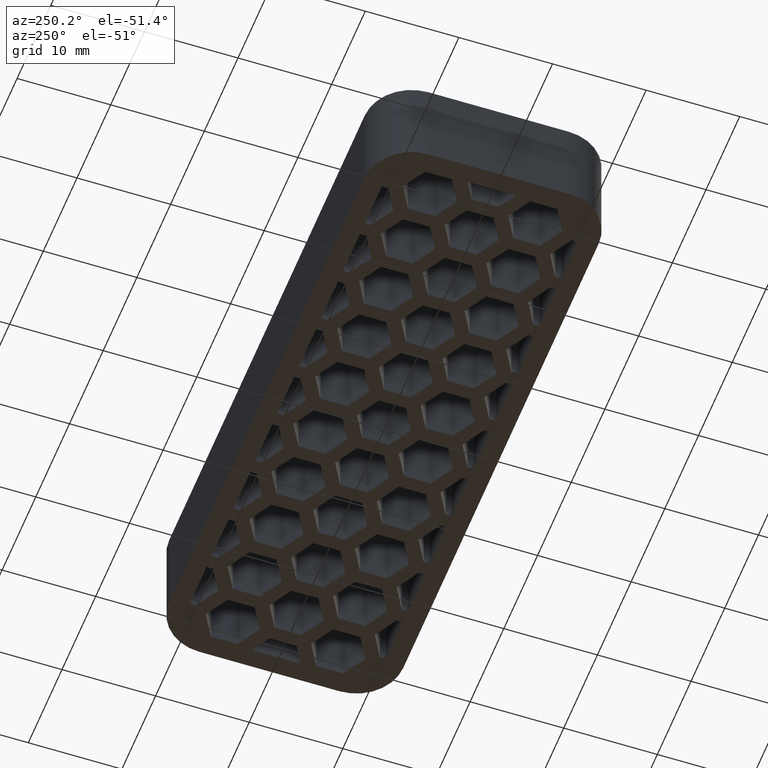
[diagram: clean part render]
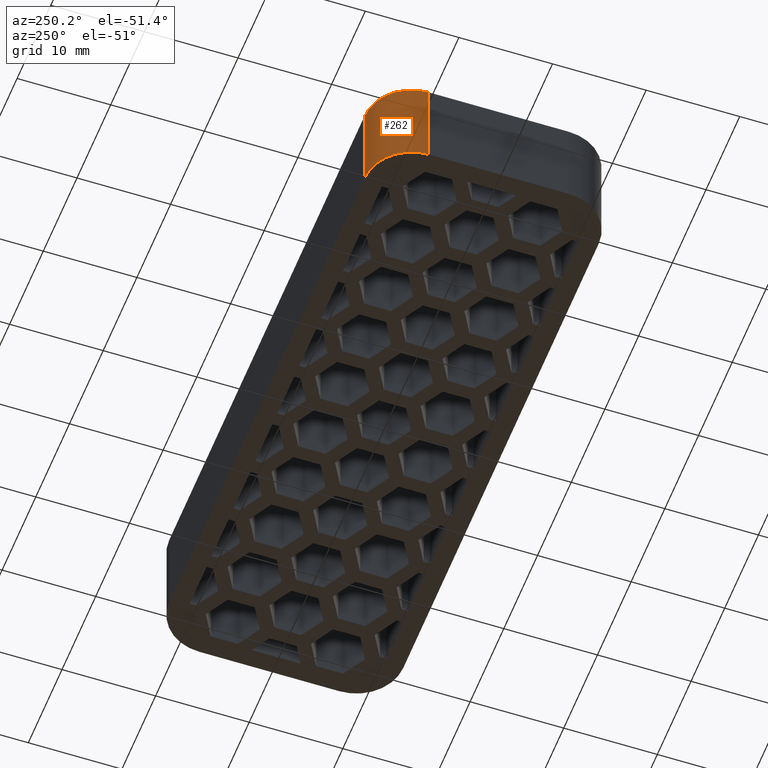
[diagram: same view with one face highlighted and labeled with its STEP entity id]
A machine part, auxiliary view. The second image highlights one B-rep face of the part: STEP entity #262.
In plain terms, the highlighted cylindrical surface (partial cylindrical patch) has radius 5 mm, axis along (-0, 0, 1).
Its self-contained STEP definition (entity closure, byte-faithful):
#262 = ADVANCED_FACE( '', ( #876 ), #877, .T. );
#876 = FACE_OUTER_BOUND( '', #1670, .T. );
#877 = CYLINDRICAL_SURFACE( '', #1671, 5.00000000000000 );
#1670 = EDGE_LOOP( '', ( #3725, #3726, #3727, #3728 ) );
#1671 = AXIS2_PLACEMENT_3D( '', #3729, #3730, #3731 );
#3725 = ORIENTED_EDGE( '', *, *, #5318, .F. );
#3726 = ORIENTED_EDGE( '', *, *, #5800, .F. );
#3727 = ORIENTED_EDGE( '', *, *, #5007, .T. );
#3728 = ORIENTED_EDGE( '', *, *, #5362, .T. );
#3729 = CARTESIAN_POINT( '', ( -29.0000000000000, 7.50000000000001, 95.1170716855138 ) );
#3730 = DIRECTION( '', ( -1.60751816480226E-016, 1.81794180051289E-016, 1.00000000000000 ) );
#3731 = DIRECTION( '', ( -1.00000000000000, 4.62592926927148E-016, -1.60751816480226E-016 ) );
#5007 = EDGE_CURVE( '', #5951, #5949, #5952, .T. );
#5318 = EDGE_CURVE( '', #6564, #6566, #6567, .T. );
#5362 = EDGE_CURVE( '', #5949, #6566, #6636, .T. );
#5800 = EDGE_CURVE( '', #5951, #6564, #7348, .T. );
#5949 = VERTEX_POINT( '', #7509 );
#5951 = VERTEX_POINT( '', #7512 );
#5952 = CIRCLE( '', #7513, 5.00000000000000 );
#6564 = VERTEX_POINT( '', #8426 );
#6566 = VERTEX_POINT( '', #8429 );
#6567 = CIRCLE( '', #8430, 5.00000000000000 );
#6636 = LINE( '', #8540, #8541 );
#7348 = LINE( '', #9688, #9689 );
#7509 = CARTESIAN_POINT( '', ( -29.0000000000000, 12.5000000000000, 10.0000000000000 ) );
#7512 = CARTESIAN_POINT( '', ( -34.0000000000000, 7.50000000000001, 10.0000000000000 ) );
#7513 = AXIS2_PLACEMENT_3D( '', #9947, #9948, #9949 );
#8426 = CARTESIAN_POINT( '', ( -34.0000000000000, 7.50000000000001, 1.34185604251311E-014 ) );
#8429 = CARTESIAN_POINT( '', ( -29.0000000000000, 12.5000000000000, 1.31124088366755E-014 ) );
#8430 = AXIS2_PLACEMENT_3D( '', #10276, #10277, #10278 );
#8540 = CARTESIAN_POINT( '', ( -29.0000000000000, 12.5000000000000, 95.1170716855138 ) );
#8541 = VECTOR( '', #10326, 1000.00000000000 );
#9688 = CARTESIAN_POINT( '', ( -34.0000000000000, 7.50000000000001, 95.1170716855138 ) );
#9689 = VECTOR( '', #10768, 1000.00000000000 );
#9947 = CARTESIAN_POINT( '', ( -29.0000000000000, 7.50000000000000, 10.0000000000000 ) );
#9948 = DIRECTION( '', ( 0.000000000000000, -6.12303176911189E-017, -1.00000000000000 ) );
#9949 = DIRECTION( '', ( 0.000000000000000, 1.00000000000000, -6.12303176911189E-017 ) );
#10276 = CARTESIAN_POINT( '', ( -29.0000000000000, 7.50000000000000, 1.34185604251311E-014 ) );
#10277 = DIRECTION( '', ( 0.000000000000000, -6.12303176911189E-017, -1.00000000000000 ) );
#10278 = DIRECTION( '', ( 0.000000000000000, 1.00000000000000, -6.12303176911189E-017 ) );
#10326 = DIRECTION( '', ( 1.60751816480226E-016, -1.81794180051289E-016, -1.00000000000000 ) );
#10768 = DIRECTION( '', ( 1.60751816480226E-016, -1.81794180051289E-016, -1.00000000000000 ) );